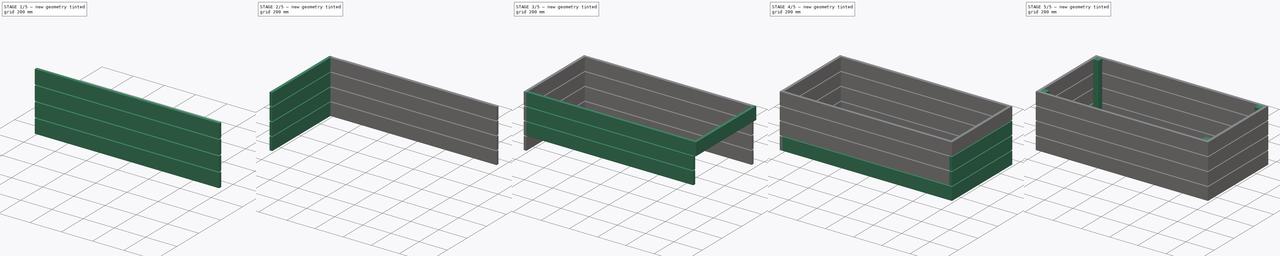
[diagram: build sequence overview — one tinted view per stage of 5, left to right]
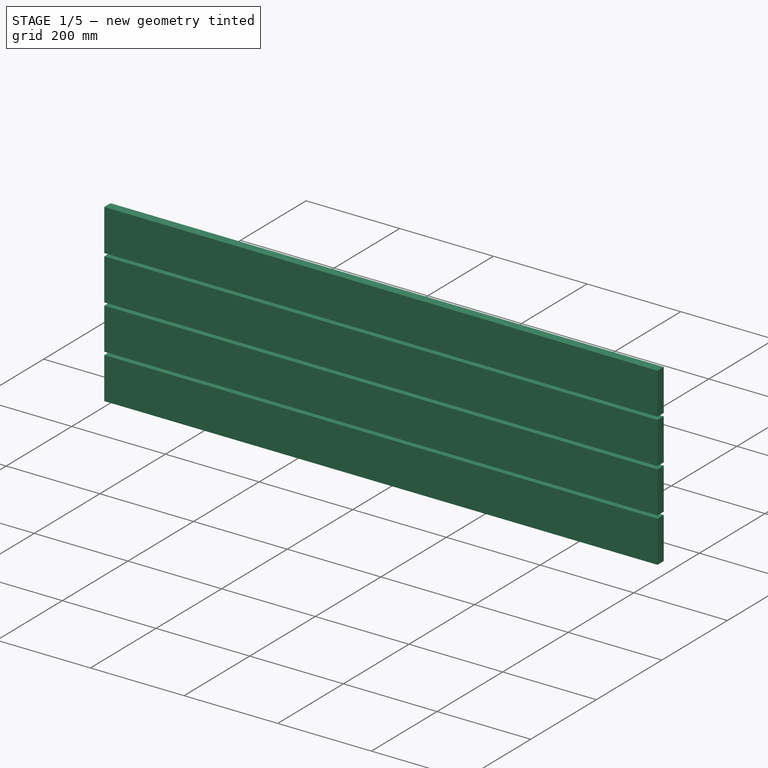
[diagram: stage 1 of 5 — iso view after this stage's code; geometry added in this stage tinted green]
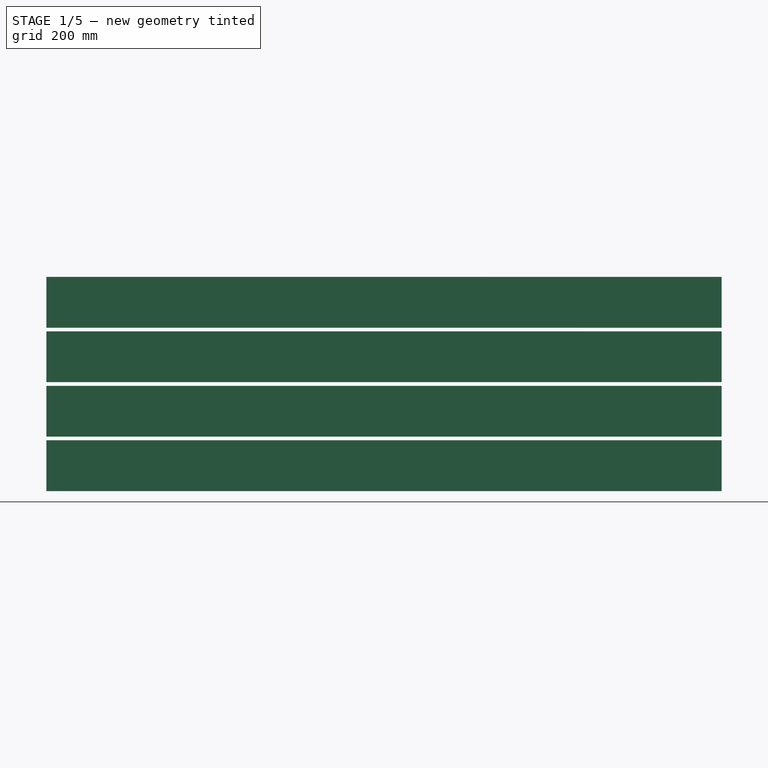
[diagram: stage 1 of 5 — front view after this stage's code; geometry added in this stage tinted green]
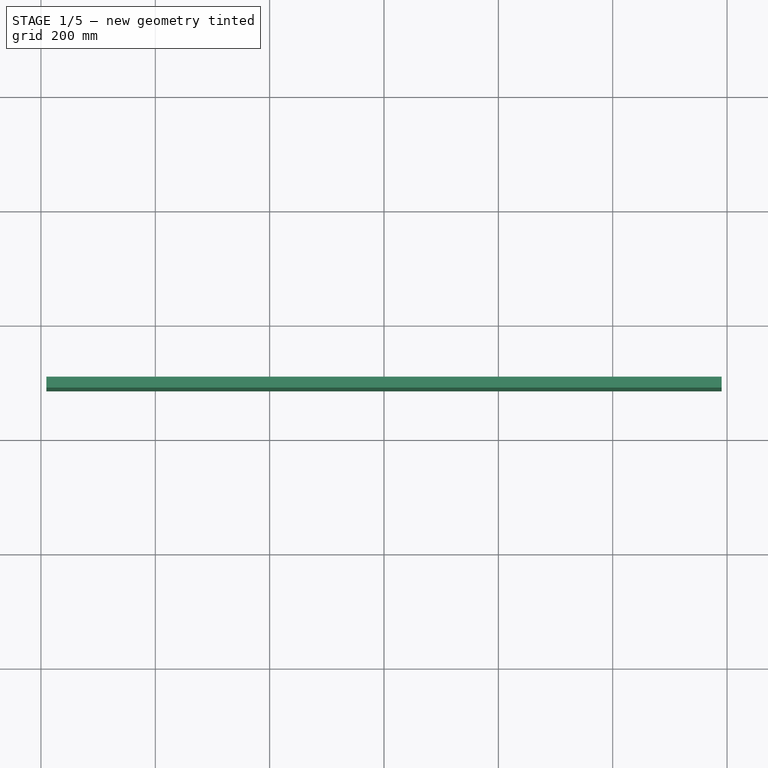
[diagram: stage 1 of 5 — top view after this stage's code; geometry added in this stage tinted green]
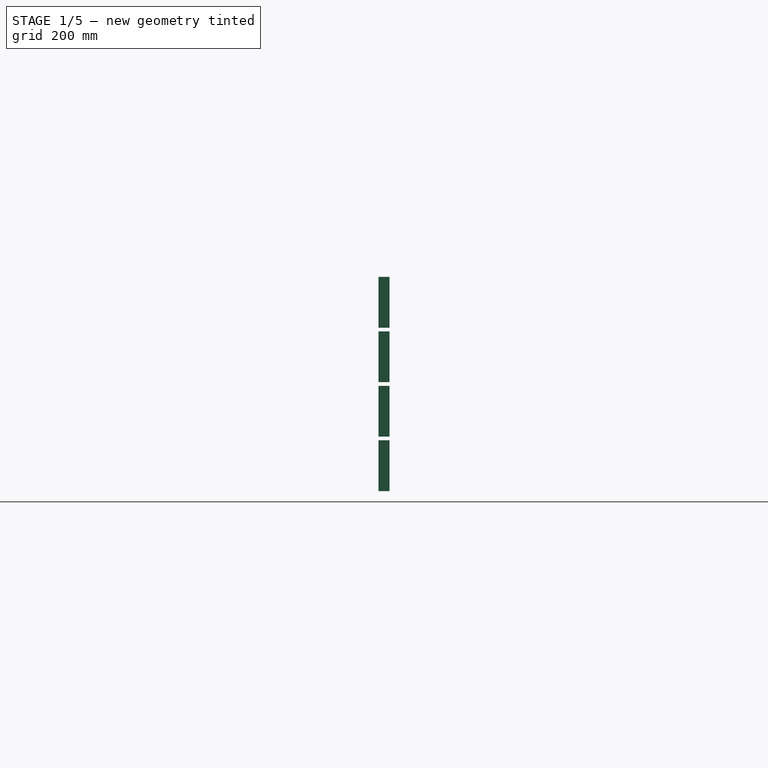
[diagram: stage 1 of 5 — right view after this stage's code; geometry added in this stage tinted green]
FCSTD DOCUMENT  (FreeCAD 0.21R33771 (Git))
Label: wormBin
License: All rights reserved
LicenseURL: http://en.wikipedia.org/wiki/All_rights_reserved
objects: Sketcher::SketchObject×20, PartDesign::Pad×20, PartDesign::Body×20, App::Part×5, Spreadsheet::Sheet×4
note: 80 computed .brp shape members not serialized (recipe doc carries the construction recipe); baked Part::Feature solids carry a one-line shape summary decoded from their .brp

FEATURE [PartDesign::Body] Body015  label="panelLeft4"
  Group = -> [Pad018,Sketch018]
  Origin = -> Origin019
  Tip = -> Pad018
FEATURE [App::Part] Part003  label="panelLeft"
  Group = -> [Body012,Body013,Body014,Body015]
  Origin = -> Origin015
FEATURE [Sketcher::SketchObject] Sketch019
  AttachmentOffset = pos=(0,0,-285.75) rot=(0,0,1;0rad)
  FullyConstrained = true
  MapMode = 5
  Placement = pos=(0,285.75,-6.34e-14) rot=(1,0,0;1.5708rad)
  Support = -> [XZ_Plane021]
  expr: .AttachmentOffset.Base.z = -<<expPanel>>.offsetZ
  expr: Constraints[10] = <<var>>.widPanel
  expr: Constraints[11] = -<<var>>.lenPanel
  expr: Constraints[8] = <<expPanel>>.vertexHor1
  expr: Constraints[9] = <<expSide>>.vertexVert1
  sketch-geometry (4):
    g0: LineSegment StartX=590.55 StartY=88.9 StartZ=0 EndX=-590.55 EndY=88.9 EndZ=0
    g1: LineSegment StartX=-590.55 StartY=88.9 StartZ=0 EndX=-590.55 EndY=1.42e-14 EndZ=0
    g2: LineSegment StartX=-590.55 StartY=1.42e-14 StartZ=0 EndX=590.55 EndY=1.42e-14 EndZ=0
    g3: LineSegment StartX=590.55 StartY=1.42e-14 StartZ=0 EndX=590.55 EndY=88.9 EndZ=0
  constraints (12):
    c: Coincident(g0,g1)
    c: Coincident(g1,g2)
    c: Coincident(g2,g3)
    c: Coincident(g3,g0)
    c: Horizontal(g0)
    c: Horizontal(g2)
    c: Vertical(g1)
    c: Vertical(g3)
    c: DistanceX(g0) = 590.55
    c: DistanceY(g0) = 88.9
    c: DistanceY(g3,g3) = 88.9
    c: DistanceX(g0,g0) = -1181.1
FEATURE [PartDesign::Pad] Pad019
  Direction = (0,-1,2e-16)
  Length = -19.05
  Length2 = 10
  Placement = pos=(0,0,0) rot=(1,0,0;1.5708rad)
  Profile = -> Sketch019
  ReferenceAxis = -> Sketch019 [N_Axis]
  Type = 0
  expr: Length = -<<var>>.thkPanel
FEATURE [PartDesign::Body] Body016  label="panelRear1"
  Group = -> [Sketch019,Pad019]
  Origin = -> Origin021
  Tip = -> Pad019
FEATURE [Sketcher::SketchObject] Sketch020
  AttachmentOffset = pos=(0,0,-285.75) rot=(0,0,1;0rad)
  FullyConstrained = true
  MapMode = 5
  Placement = pos=(0,285.75,-6.34e-14) rot=(1,0,0;1.5708rad)
  Support = -> [XZ_Plane022]
  expr: .AttachmentOffset.Base.z = -<<expPanel>>.offsetZ
  expr: Constraints[10] = <<var>>.widPanel
  expr: Constraints[11] = -<<var>>.lenPanel
  expr: Constraints[8] = <<expPanel>>.vertexHor1
  expr: Constraints[9] = <<expSide>>.vertexVert1 * 2 + <<expPanel>>.offsetVert
  sketch-geometry (4):
    g0: LineSegment StartX=590.55 StartY=184.15 StartZ=0 EndX=-590.55 EndY=184.15 EndZ=0
    g1: LineSegment StartX=-590.55 StartY=184.15 StartZ=0 EndX=-590.55 EndY=95.25 EndZ=0
    g2: LineSegment StartX=-590.55 StartY=95.25 StartZ=0 EndX=590.55 EndY=95.25 EndZ=0
    g3: LineSegment StartX=590.55 StartY=95.25 StartZ=0 EndX=590.55 EndY=184.15 EndZ=0
  constraints (12):
    c: Coincident(g0,g1)
    c: Coincident(g1,g2)
    c: Coincident(g2,g3)
    c: Coincident(g3,g0)
    c: Horizontal(g0)
    c: Horizontal(g2)
    c: Vertical(g1)
    c: Vertical(g3)
    c: DistanceX(g0) = 590.55
    c: DistanceY(g0) = 184.15
    c: DistanceY(g3,g3) = 88.9
    c: DistanceX(g0,g0) = -1181.1
FEATURE [PartDesign::Pad] Pad020
  Direction = (0,-1,2e-16)
  Length = -19.05
  Length2 = 10
  Placement = pos=(0,0,0) rot=(1,0,0;1.5708rad)
  Profile = -> Sketch020
  ReferenceAxis = -> Sketch020 [N_Axis]
  Type = 0
  expr: Length = -<<var>>.thkPanel
FEATURE [PartDesign::Body] Body017  label="panelRear2"
  Group = -> [Pad020,Sketch020]
  Origin = -> Origin022
  Tip = -> Pad020
FEATURE [Sketcher::SketchObject] Sketch021
  AttachmentOffset = pos=(0,0,-285.75) rot=(0,0,1;0rad)
  FullyConstrained = true
  MapMode = 5
  Placement = pos=(0,285.75,-6.34e-14) rot=(1,0,0;1.5708rad)
  Support = -> [XZ_Plane023]
  expr: .AttachmentOffset.Base.z = -<<expPanel>>.offsetZ
  expr: Constraints[10] = <<var>>.widPanel
  expr: Constraints[11] = -<<var>>.lenPanel
  expr: Constraints[8] = <<expPanel>>.vertexHor1
  expr: Constraints[9] = <<expSide>>.vertexVert1 * 3 + <<expPanel>>.offsetVert * 2
  sketch-geometry (4):
    g0: LineSegment StartX=590.55 StartY=279.4 StartZ=0 EndX=-590.55 EndY=279.4 EndZ=0
    g1: LineSegment StartX=-590.55 StartY=279.4 StartZ=0 EndX=-590.55 EndY=190.5 EndZ=0
    g2: LineSegment StartX=-590.55 StartY=190.5 StartZ=0 EndX=590.55 EndY=190.5 EndZ=0
    g3: LineSegment StartX=590.55 StartY=190.5 StartZ=0 EndX=590.55 EndY=279.4 EndZ=0
  constraints (12):
    c: Coincident(g0,g1)
    c: Coincident(g1,g2)
    c: Coincident(g2,g3)
    c: Coincident(g3,g0)
    c: Horizontal(g0)
    c: Horizontal(g2)
    c: Vertical(g1)
    c: Vertical(g3)
    c: DistanceX(g0) = 590.55
    c: DistanceY(g0) = 279.4
    c: DistanceY(g3,g3) = 88.9
    c: DistanceX(g0,g0) = -1181.1
FEATURE [PartDesign::Pad] Pad021
  Direction = (0,-1,2e-16)
  Length = -19.05
  Length2 = 10
  Placement = pos=(0,0,0) rot=(1,0,0;1.5708rad)
  Profile = -> Sketch021
  ReferenceAxis = -> Sketch021 [N_Axis]
  Type = 0
  expr: Length = -<<var>>.thkPanel
FEATURE [PartDesign::Body] Body018  label="panelRear3"
  Group = -> [Pad021,Sketch021]
  Origin = -> Origin023
  Tip = -> Pad021
FEATURE [Sketcher::SketchObject] Sketch022
  AttachmentOffset = pos=(0,0,-285.75) rot=(0,0,1;0rad)
  FullyConstrained = true
  MapMode = 5
  Placement = pos=(0,285.75,-6.34e-14) rot=(1,0,0;1.5708rad)
  Support = -> [XZ_Plane024]
  expr: .AttachmentOffset.Base.z = -<<expPanel>>.offsetZ
  expr: Constraints[10] = <<var>>.widPanel
  expr: Constraints[11] = -<<var>>.lenPanel
  expr: Constraints[8] = <<expPanel>>.vertexHor1
  expr: Constraints[9] = <<expSide>>.vertexVert1 * 4 + <<expPanel>>.offsetVert * 3
  sketch-geometry (4):
    g0: LineSegment StartX=590.55 StartY=374.65 StartZ=0 EndX=-590.55 EndY=374.65 EndZ=0
    g1: LineSegment StartX=-590.55 StartY=374.65 StartZ=0 EndX=-590.55 EndY=285.75 EndZ=0
    g2: LineSegment StartX=-590.55 StartY=285.75 StartZ=0 EndX=590.55 EndY=285.75 EndZ=0
    g3: LineSegment StartX=590.55 StartY=285.75 StartZ=0 EndX=590.55 EndY=374.65 EndZ=0
  constraints (12):
    c: Coincident(g0,g1)
    c: Coincident(g1,g2)
    c: Coincident(g2,g3)
    c: Coincident(g3,g0)
    c: Horizontal(g0)
    c: Horizontal(g2)
    c: Vertical(g1)
    c: Vertical(g3)
    c: DistanceX(g0) = 590.55
    c: DistanceY(g0) = 374.65
    c: DistanceY(g3,g3) = 88.9
    c: DistanceX(g0,g0) = -1181.1
FEATURE [PartDesign::Pad] Pad022
  Direction = (0,-1,2e-16)
  Length = -19.05
  Length2 = 10
  Placement = pos=(0,0,0) rot=(1,0,0;1.5708rad)
  Profile = -> Sketch022
  ReferenceAxis = -> Sketch022 [N_Axis]
  Type = 0
  expr: Length = -<<var>>.thkPanel
FEATURE [PartDesign::Body] Body019  label="panelRear4"
  Group = -> [Pad022,Sketch022]
  Origin = -> Origin024
  Tip = -> Pad022
FEATURE [App::Part] Part004  label="panelRear"
  Group = -> [Body016,Body017,Body018,Body019]
  Origin = -> Origin020
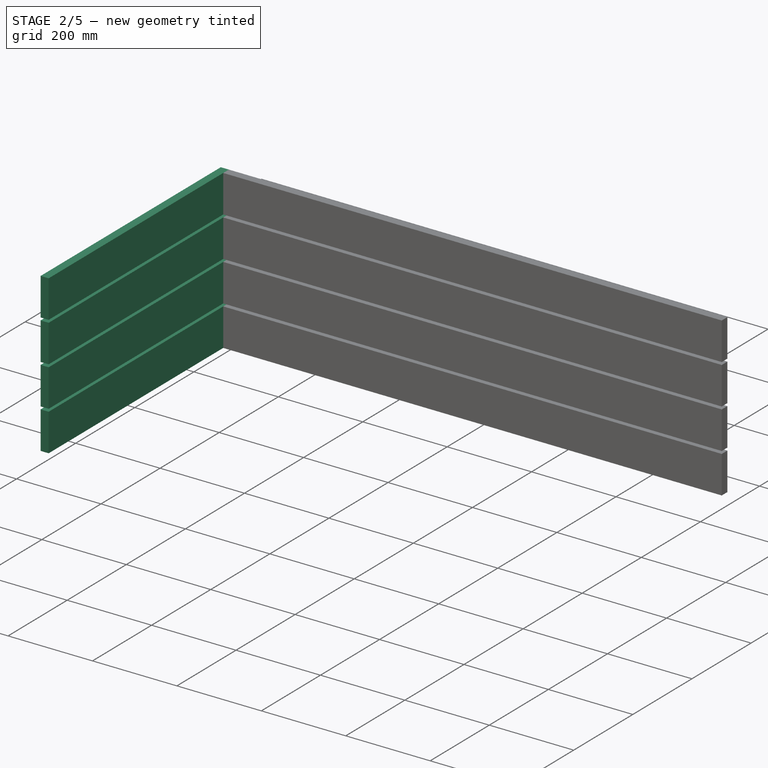
[diagram: stage 2 of 5 — iso view after this stage's code; geometry added in this stage tinted green]
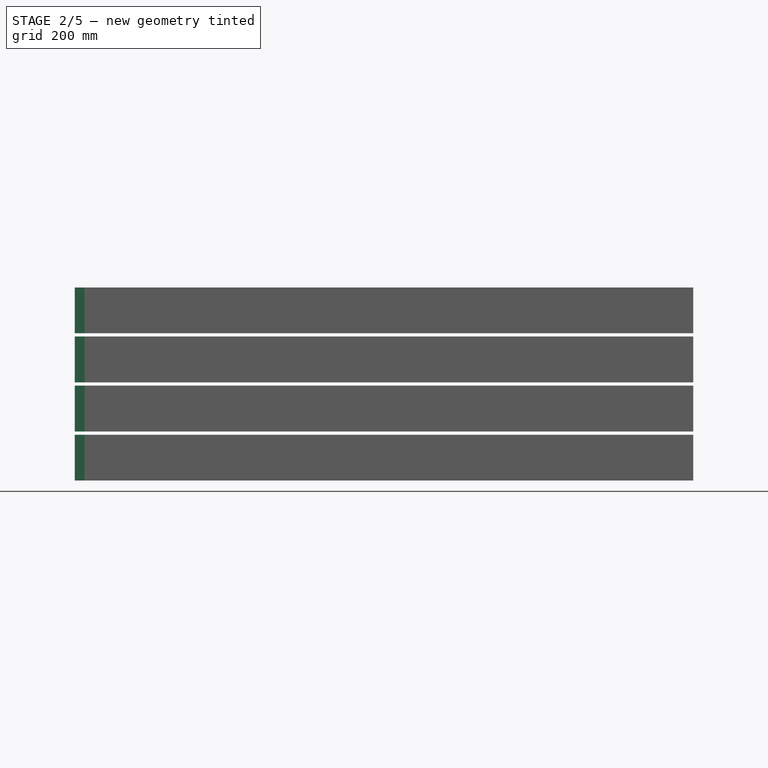
[diagram: stage 2 of 5 — front view after this stage's code; geometry added in this stage tinted green]
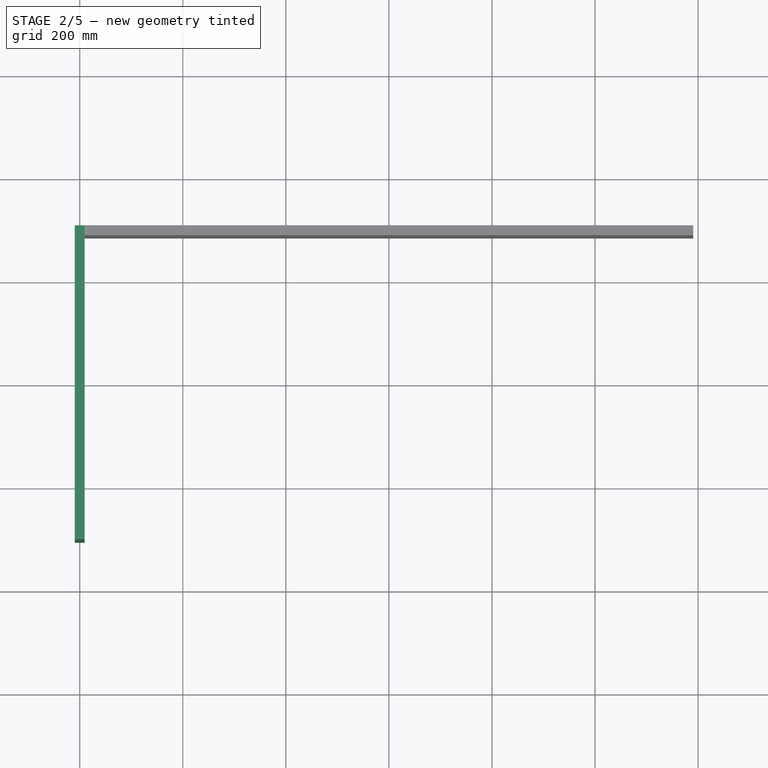
[diagram: stage 2 of 5 — top view after this stage's code; geometry added in this stage tinted green]
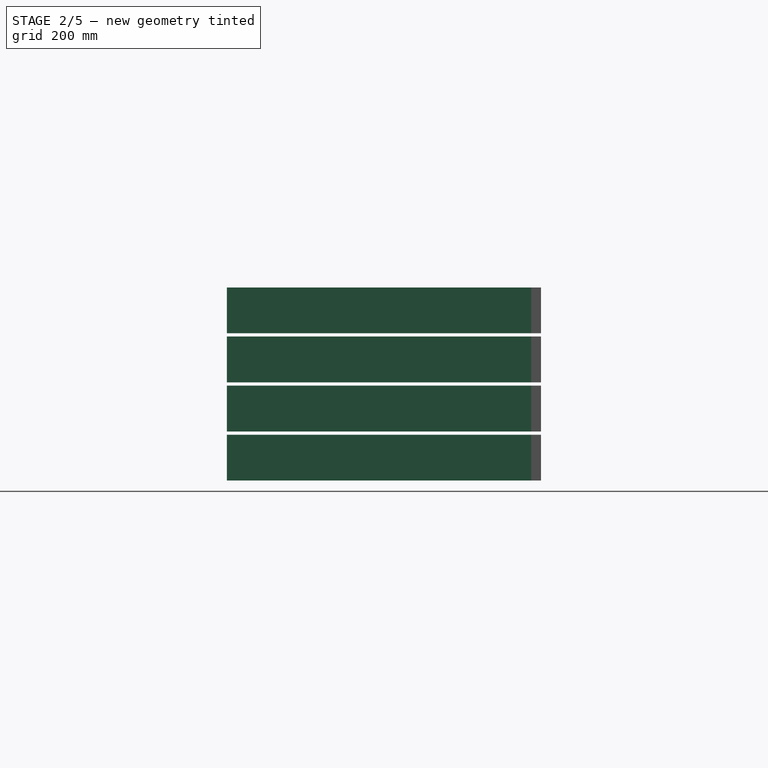
[diagram: stage 2 of 5 — right view after this stage's code; geometry added in this stage tinted green]
FEATURE [PartDesign::Body] Body007  label="panelFront4"
  Group = -> [Pad014,Sketch014]
  Origin = -> Origin009
  Tip = -> Pad014
FEATURE [App::Part] Part001  label="panelFront"
  Group = -> [Body004,Body005,Body006,Body007,Spreadsheet003]
  Origin = -> Origin005
FEATURE [Sketcher::SketchObject] Sketch015
  AttachmentOffset = pos=(0,0,-590.55) rot=(0,0,1;0rad)
  FullyConstrained = true
  MapMode = 5
  Placement = pos=(-590.55,1.311e-13,-1.311e-13) rot=(0.57735,0.57735,0.57735;2.0944rad)
  Support = -> [YZ_Plane016]
  expr: .AttachmentOffset.Base.z = -<<expSide>>.offsetZ
  expr: Constraints[10] = <<var>>.widPanel
  expr: Constraints[11] = <<var>>.lenSide
  expr: Constraints[8] = -<<expSide>>.vertexHor1
  expr: Constraints[9] = <<expSide>>.vertexVert1
  sketch-geometry (4):
    g0: LineSegment StartX=-304.8 StartY=88.9 StartZ=0 EndX=304.8 EndY=88.9 EndZ=0
    g1: LineSegment StartX=304.8 StartY=88.9 StartZ=0 EndX=304.8 EndY=0 EndZ=0
    g2: LineSegment StartX=304.8 StartY=0 StartZ=0 EndX=-304.8 EndY=0 EndZ=0
    g3: LineSegment StartX=-304.8 StartY=0 StartZ=0 EndX=-304.8 EndY=88.9 EndZ=0
  constraints (12):
    c: Coincident(g0,g1)
    c: Coincident(g1,g2)
    c: Coincident(g2,g3)
    c: Coincident(g3,g0)
    c: Horizontal(g0)
    c: Horizontal(g2)
    c: Vertical(g1)
    c: Vertical(g3)
    c: DistanceX(g0) = -304.8
    c: DistanceY(g0) = 88.9
    c: DistanceY(g3,g3) = 88.9
    c: DistanceX(g0,g0) = 609.6
FEATURE [PartDesign::Pad] Pad015
  Direction = (1,-2e-16,3e-16)
  Length = -19.05
  Length2 = 10
  Placement = pos=(0,0,0) rot=(1,1,1;2.0944rad)
  Profile = -> Sketch015
  ReferenceAxis = -> Sketch015 [N_Axis]
  Type = 0
  expr: Length = -<<var>>.thkSide
FEATURE [PartDesign::Body] Body012  label="panelLeft1"
  Group = -> [Sketch015,Pad015]
  Origin = -> Origin016
  Tip = -> Pad015
FEATURE [Sketcher::SketchObject] Sketch016
  AttachmentOffset = pos=(0,0,-590.55) rot=(0,0,1;0rad)
  FullyConstrained = true
  MapMode = 5
  Placement = pos=(-590.55,1.311e-13,-1.311e-13) rot=(0.57735,0.57735,0.57735;2.0944rad)
  Support = -> [YZ_Plane017]
  expr: .AttachmentOffset.Base.z = -<<expSide>>.offsetZ
  expr: Constraints[10] = <<var>>.widPanel
  expr: Constraints[11] = <<var>>.lenSide
  expr: Constraints[8] = -<<expSide>>.vertexHor1
  expr: Constraints[9] = <<expSide>>.vertexVert1 * 2 + <<expSide>>.offsetVert
  sketch-geometry (4):
    g0: LineSegment StartX=-304.8 StartY=184.15 StartZ=0 EndX=304.8 EndY=184.15 EndZ=0
    g1: LineSegment StartX=304.8 StartY=184.15 StartZ=0 EndX=304.8 EndY=95.25 EndZ=0
    g2: LineSegment StartX=304.8 StartY=95.25 StartZ=0 EndX=-304.8 EndY=95.25 EndZ=0
    g3: LineSegment StartX=-304.8 StartY=95.25 StartZ=0 EndX=-304.8 EndY=184.15 EndZ=0
  constraints (12):
    c: Coincident(g0,g1)
    c: Coincident(g1,g2)
    c: Coincident(g2,g3)
    c: Coincident(g3,g0)
    c: Horizontal(g0)
    c: Horizontal(g2)
    c: Vertical(g1)
    c: Vertical(g3)
    c: DistanceX(g0) = -304.8
    c: DistanceY(g0) = 184.15
    c: DistanceY(g3,g3) = 88.9
    c: DistanceX(g0,g0) = 609.6
FEATURE [PartDesign::Pad] Pad016
  Direction = (1,-2e-16,3e-16)
  Length = -19.05
  Length2 = 10
  Placement = pos=(0,0,0) rot=(1,1,1;2.0944rad)
  Profile = -> Sketch016
  ReferenceAxis = -> Sketch016 [N_Axis]
  Type = 0
  expr: Length = -<<var>>.thkSide
FEATURE [PartDesign::Body] Body013  label="panelLeft2"
  Group = -> [Pad016,Sketch016]
  Origin = -> Origin017
  Tip = -> Pad016
FEATURE [Sketcher::SketchObject] Sketch017
  AttachmentOffset = pos=(0,0,-590.55) rot=(0,0,1;0rad)
  FullyConstrained = true
  MapMode = 5
  Placement = pos=(-590.55,1.311e-13,-1.311e-13) rot=(0.57735,0.57735,0.57735;2.0944rad)
  Support = -> [YZ_Plane018]
  expr: .AttachmentOffset.Base.z = -<<expSide>>.offsetZ
  expr: Constraints[10] = <<var>>.widPanel
  expr: Constraints[11] = <<var>>.lenSide
  expr: Constraints[8] = -<<expSide>>.vertexHor1
  expr: Constraints[9] = (<<expSide>>.vertexVert1 + <<expSide>>.offsetVert) * 2 + <<var>>.widSide
  sketch-geometry (4):
    g0: LineSegment StartX=-304.8 StartY=279.4 StartZ=0 EndX=304.8 EndY=279.4 EndZ=0
    g1: LineSegment StartX=304.8 StartY=279.4 StartZ=0 EndX=304.8 EndY=190.5 EndZ=0
    g2: LineSegment StartX=304.8 StartY=190.5 StartZ=0 EndX=-304.8 EndY=190.5 EndZ=0
    g3: LineSegment StartX=-304.8 StartY=190.5 StartZ=0 EndX=-304.8 EndY=279.4 EndZ=0
  constraints (12):
    c: Coincident(g0,g1)
    c: Coincident(g1,g2)
    c: Coincident(g2,g3)
    c: Coincident(g3,g0)
    c: Horizontal(g0)
    c: Horizontal(g2)
    c: Vertical(g1)
    c: Vertical(g3)
    c: DistanceX(g0) = -304.8
    c: DistanceY(g0) = 279.4
    c: DistanceY(g3,g3) = 88.9
    c: DistanceX(g0,g0) = 609.6
FEATURE [PartDesign::Pad] Pad017
  Direction = (1,-2e-16,3e-16)
  Length = -19.05
  Length2 = 10
  Placement = pos=(0,0,0) rot=(1,1,1;2.0944rad)
  Profile = -> Sketch017
  ReferenceAxis = -> Sketch017 [N_Axis]
  Type = 0
  expr: Length = -<<var>>.thkSide
FEATURE [PartDesign::Body] Body014  label="panelLeft3"
  Group = -> [Pad017,Sketch017]
  Origin = -> Origin018
  Tip = -> Pad017
FEATURE [Sketcher::SketchObject] Sketch018
  AttachmentOffset = pos=(0,0,-590.55) rot=(0,0,1;0rad)
  FullyConstrained = true
  MapMode = 5
  Placement = pos=(-590.55,1.311e-13,-1.311e-13) rot=(0.57735,0.57735,0.57735;2.0944rad)
  Support = -> [YZ_Plane019]
  expr: .AttachmentOffset.Base.z = -<<expSide>>.offsetZ
  expr: Constraints[10] = <<var>>.widPanel
  expr: Constraints[11] = <<var>>.lenSide
  expr: Constraints[8] = -<<expSide>>.vertexHor1
  expr: Constraints[9] = (<<expSide>>.vertexVert1 + <<expSide>>.offsetVert) * 3 + <<var>>.widSide
  sketch-geometry (4):
    g0: LineSegment StartX=-304.8 StartY=374.65 StartZ=0 EndX=304.8 EndY=374.65 EndZ=0
    g1: LineSegment StartX=304.8 StartY=374.65 StartZ=0 EndX=304.8 EndY=285.75 EndZ=0
    g2: LineSegment StartX=304.8 StartY=285.75 StartZ=0 EndX=-304.8 EndY=285.75 EndZ=0
    g3: LineSegment StartX=-304.8 StartY=285.75 StartZ=0 EndX=-304.8 EndY=374.65 EndZ=0
  constraints (12):
    c: Coincident(g0,g1)
    c: Coincident(g1,g2)
    c: Coincident(g2,g3)
    c: Coincident(g3,g0)
    c: Horizontal(g0)
    c: Horizontal(g2)
    c: Vertical(g1)
    c: Vertical(g3)
    c: DistanceX(g0) = -304.8
    c: DistanceY(g0) = 374.65
    c: DistanceY(g3,g3) = 88.9
    c: DistanceX(g0,g0) = 609.6
FEATURE [PartDesign::Pad] Pad018
  Direction = (1,-2e-16,3e-16)
  Length = -19.05
  Length2 = 10
  Placement = pos=(0,0,0) rot=(1,1,1;2.0944rad)
  Profile = -> Sketch018
  ReferenceAxis = -> Sketch018 [N_Axis]
  Type = 0
  expr: Length = -<<var>>.thkSide
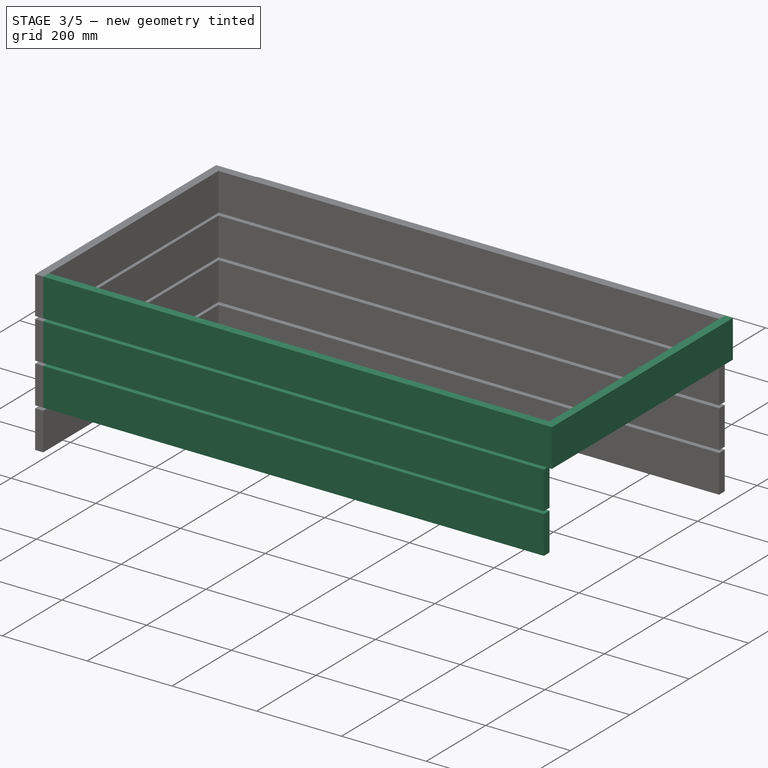
[diagram: stage 3 of 5 — iso view after this stage's code; geometry added in this stage tinted green]
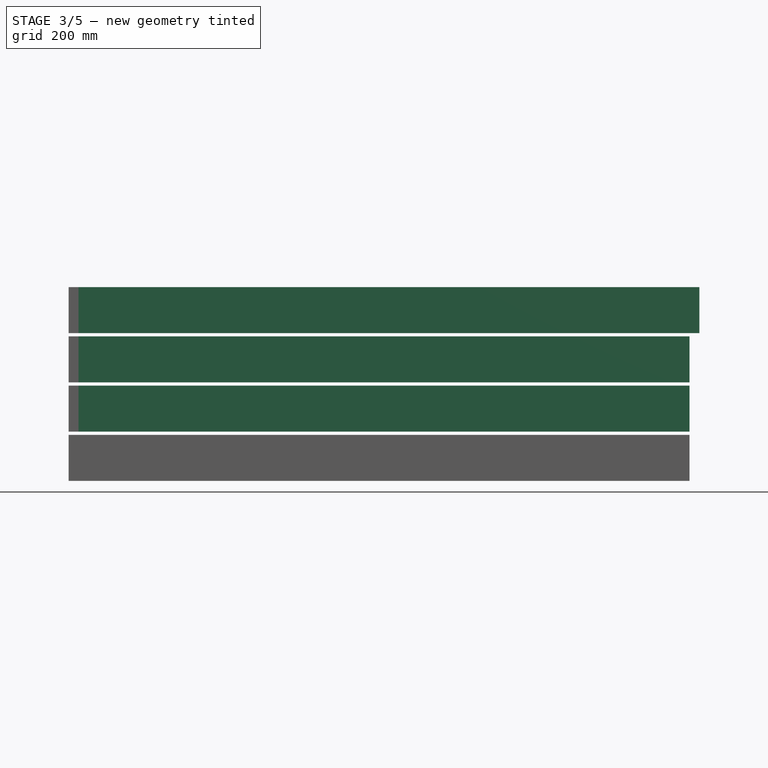
[diagram: stage 3 of 5 — front view after this stage's code; geometry added in this stage tinted green]
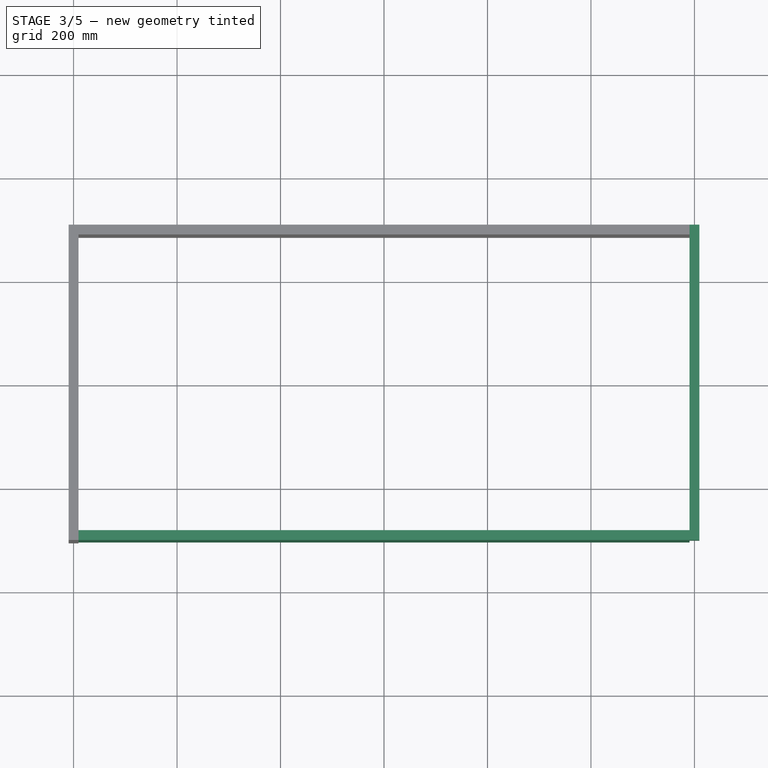
[diagram: stage 3 of 5 — top view after this stage's code; geometry added in this stage tinted green]
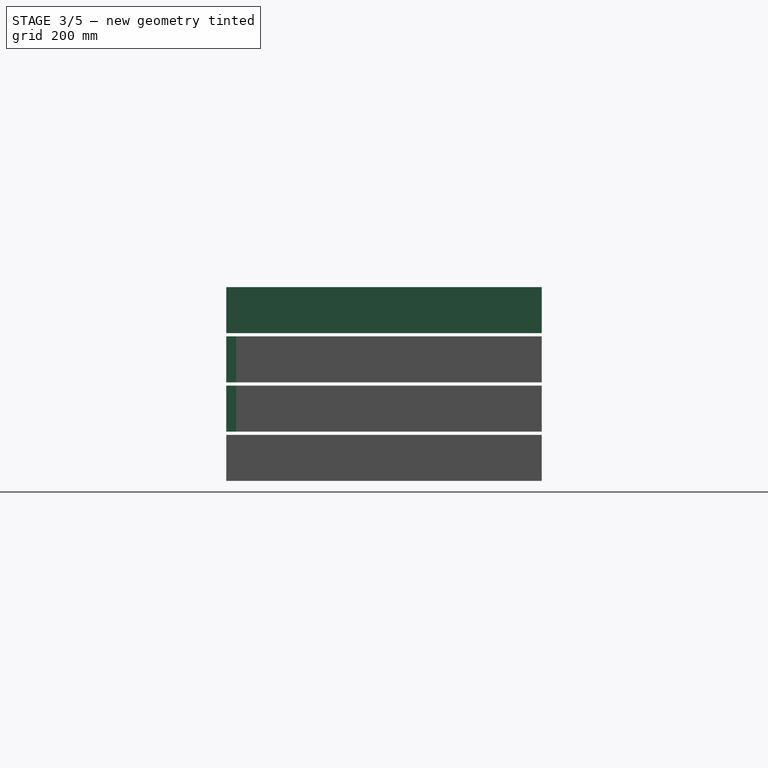
[diagram: stage 3 of 5 — right view after this stage's code; geometry added in this stage tinted green]
FEATURE [PartDesign::Body] Body010  label="panelRight3"
  Group = -> [Pad010,Sketch010]
  Origin = -> Origin013
  Tip = -> Pad010
FEATURE [Sketcher::SketchObject] Sketch011
  AttachmentOffset = pos=(0,0,590.55) rot=(0,0,1;0rad)
  FullyConstrained = true
  MapMode = 5
  Placement = pos=(590.55,-1.311e-13,1.311e-13) rot=(0.57735,0.57735,0.57735;2.0944rad)
  Support = -> [YZ_Plane014]
  expr: .AttachmentOffset.Base.z = <<expSide>>.offsetZ
  expr: Constraints[10] = <<var>>.widSide
  expr: Constraints[11] = <<var>>.lenSide
  expr: Constraints[8] = -<<expSide>>.vertexHor1
  expr: Constraints[9] = (<<expSide>>.vertexVert1 + <<expSide>>.offsetVert) * 3 + <<var>>.widSide
  sketch-geometry (4):
    g0: LineSegment StartX=-304.8 StartY=374.65 StartZ=0 EndX=304.8 EndY=374.65 EndZ=0
    g1: LineSegment StartX=304.8 StartY=374.65 StartZ=0 EndX=304.8 EndY=285.75 EndZ=0
    g2: LineSegment StartX=304.8 StartY=285.75 StartZ=0 EndX=-304.8 EndY=285.75 EndZ=0
    g3: LineSegment StartX=-304.8 StartY=285.75 StartZ=0 EndX=-304.8 EndY=374.65 EndZ=0
  constraints (12):
    c: Coincident(g0,g1)
    c: Coincident(g1,g2)
    c: Coincident(g2,g3)
    c: Coincident(g3,g0)
    c: Horizontal(g0)
    c: Horizontal(g2)
    c: Vertical(g1)
    c: Vertical(g3)
    c: DistanceX(g0) = -304.8
    c: DistanceY(g0) = 374.65
    c: DistanceY(g3,g3) = 88.9
    c: DistanceX(g0,g0) = 609.6
FEATURE [PartDesign::Pad] Pad011
  Direction = (1,-2e-16,3e-16)
  Length = 19.05
  Length2 = 10
  Placement = pos=(0,0,0) rot=(1,1,1;2.0944rad)
  Profile = -> Sketch011
  ReferenceAxis = -> Sketch011 [N_Axis]
  Type = 0
  expr: Length = <<var>>.thkSide
FEATURE [PartDesign::Body] Body011  label="panelRight4"
  Group = -> [Pad011,Sketch011]
  Origin = -> Origin014
  Tip = -> Pad011
FEATURE [App::Part] Part002  label="panelRight"
  Group = -> [Body008,Body009,Body010,Body011,Spreadsheet002]
  Origin = -> Origin010
FEATURE [Spreadsheet::Sheet] Spreadsheet003  label="expPanel"
  cells = A2='Side; A3='vertexVert1; B3(vertexVert1)==<<var>>.widPanel; A4='vertexHor1; B4(vertexHor1)==<<var>>.lenPanel * 0.5; A5='offsetZ; B5(offsetZ)==<<var>>.widBox * 0.5 - <<var>>.thkPanel; A6='offsetVert; B6(offsetVert)==<<var>>.offsetPanelSpacing
FEATURE [Sketcher::SketchObject] Sketch012
  AttachmentOffset = pos=(0,0,285.75) rot=(0,0,1;0rad)
  FullyConstrained = true
  MapMode = 5
  Placement = pos=(0,-285.75,-6.34e-14) rot=(1,0,0;1.5708rad)
  Support = -> [XZ_Plane007]
  expr: .AttachmentOffset.Base.z = <<var>>.widBox * 0.5 - <<var>>.thkPanel
  expr: Constraints[10] = <<var>>.widPanel
  expr: Constraints[11] = <<var>>.lenBox - <<var>>.thkSide * 2
  expr: Constraints[8] = -<<expPanel>>.vertexHor1
  expr: Constraints[9] = <<var>>.widPanel * 2 + <<expPanel>>.offsetVert
  sketch-geometry (4):
    g0: LineSegment StartX=-590.55 StartY=184.15 StartZ=0 EndX=590.55 EndY=184.15 EndZ=0
    g1: LineSegment StartX=590.55 StartY=184.15 StartZ=0 EndX=590.55 EndY=95.25 EndZ=0
    g2: LineSegment StartX=590.55 StartY=95.25 StartZ=0 EndX=-590.55 EndY=95.25 EndZ=0
    g3: LineSegment StartX=-590.55 StartY=95.25 StartZ=0 EndX=-590.55 EndY=184.15 EndZ=0
  constraints (12):
    c: Coincident(g0,g1)
    c: Coincident(g1,g2)
    c: Coincident(g2,g3)
    c: Coincident(g3,g0)
    c: Horizontal(g0)
    c: Horizontal(g2)
    c: Vertical(g1)
    c: Vertical(g3)
    c: DistanceX(g0) = -590.55
    c: DistanceY(g0) = 184.15
    c: DistanceY(g3,g3) = 88.9
    c: DistanceX(g0,g0) = 1181.1
FEATURE [PartDesign::Pad] Pad012
  Direction = (0,-1,-2e-16)
  Length = 19.05
  Length2 = 10
  Placement = pos=(0,0,0) rot=(1,0,0;1.5708rad)
  Profile = -> Sketch012
  ReferenceAxis = -> Sketch012 [N_Axis]
  Type = 0
  expr: Length = <<var>>.thkPanel
FEATURE [PartDesign::Body] Body005  label="panelFront2"
  Group = -> [Pad012,Sketch012]
  Origin = -> Origin007
  Tip = -> Pad012
FEATURE [Sketcher::SketchObject] Sketch013
  AttachmentOffset = pos=(0,0,285.75) rot=(0,0,1;0rad)
  FullyConstrained = true
  MapMode = 5
  Placement = pos=(0,-285.75,-6.34e-14) rot=(1,0,0;1.5708rad)
  Support = -> [XZ_Plane008]
  expr: .AttachmentOffset.Base.z = <<var>>.widBox * 0.5 - <<var>>.thkPanel
  expr: Constraints[10] = <<var>>.widPanel
  expr: Constraints[11] = <<var>>.lenBox - <<var>>.thkSide * 2
  expr: Constraints[8] = -<<expPanel>>.vertexHor1
  expr: Constraints[9] = (<<var>>.widPanel + <<expPanel>>.offsetVert) * 2 + <<var>>.widPanel
  sketch-geometry (4):
    g0: LineSegment StartX=-590.55 StartY=279.4 StartZ=0 EndX=590.55 EndY=279.4 EndZ=0
    g1: LineSegment StartX=590.55 StartY=279.4 StartZ=0 EndX=590.55 EndY=190.5 EndZ=0
    g2: LineSegment StartX=590.55 StartY=190.5 StartZ=0 EndX=-590.55 EndY=190.5 EndZ=0
    g3: LineSegment StartX=-590.55 StartY=190.5 StartZ=0 EndX=-590.55 EndY=279.4 EndZ=0
  constraints (12):
    c: Coincident(g0,g1)
    c: Coincident(g1,g2)
    c: Coincident(g2,g3)
    c: Coincident(g3,g0)
    c: Horizontal(g0)
    c: Horizontal(g2)
    c: Vertical(g1)
    c: Vertical(g3)
    c: DistanceX(g0) = -590.55
    c: DistanceY(g0) = 279.4
    c: DistanceY(g3,g3) = 88.9
    c: DistanceX(g0,g0) = 1181.1
FEATURE [PartDesign::Pad] Pad013
  Direction = (0,-1,-2e-16)
  Length = 19.05
  Length2 = 10
  Placement = pos=(0,0,0) rot=(1,0,0;1.5708rad)
  Profile = -> Sketch013
  ReferenceAxis = -> Sketch013 [N_Axis]
  Type = 0
  expr: Length = <<var>>.thkPanel
FEATURE [PartDesign::Body] Body006  label="panelFront3"
  Group = -> [Pad013,Sketch013]
  Origin = -> Origin008
  Tip = -> Pad013
FEATURE [Sketcher::SketchObject] Sketch014
  AttachmentOffset = pos=(0,0,285.75) rot=(0,0,1;0rad)
  FullyConstrained = true
  MapMode = 5
  Placement = pos=(0,-285.75,-6.34e-14) rot=(1,0,0;1.5708rad)
  Support = -> [XZ_Plane009]
  expr: .AttachmentOffset.Base.z = <<var>>.widBox * 0.5 - <<var>>.thkPanel
  expr: Constraints[10] = <<var>>.widPanel
  expr: Constraints[11] = <<var>>.lenBox - <<var>>.thkSide * 2
  expr: Constraints[8] = -<<expPanel>>.vertexHor1
  expr: Constraints[9] = (<<var>>.widPanel + <<expPanel>>.offsetVert) * 3 + <<var>>.widPanel
  sketch-geometry (4):
    g0: LineSegment StartX=-590.55 StartY=374.65 StartZ=0 EndX=590.55 EndY=374.65 EndZ=0
    g1: LineSegment StartX=590.55 StartY=374.65 StartZ=0 EndX=590.55 EndY=285.75 EndZ=0
    g2: LineSegment StartX=590.55 StartY=285.75 StartZ=0 EndX=-590.55 EndY=285.75 EndZ=0
    g3: LineSegment StartX=-590.55 StartY=285.75 StartZ=0 EndX=-590.55 EndY=374.65 EndZ=0
  constraints (12):
    c: Coincident(g0,g1)
    c: Coincident(g1,g2)
    c: Coincident(g2,g3)
    c: Coincident(g3,g0)
    c: Horizontal(g0)
    c: Horizontal(g2)
    c: Vertical(g1)
    c: Vertical(g3)
    c: DistanceX(g0) = -590.55
    c: DistanceY(g0) = 374.65
    c: DistanceY(g3,g3) = 88.9
    c: DistanceX(g0,g0) = 1181.1
FEATURE [PartDesign::Pad] Pad014
  Direction = (0,-1,-2e-16)
  Length = 19.05
  Length2 = 10
  Placement = pos=(0,0,0) rot=(1,0,0;1.5708rad)
  Profile = -> Sketch014
  ReferenceAxis = -> Sketch014 [N_Axis]
  Type = 0
  expr: Length = <<var>>.thkPanel
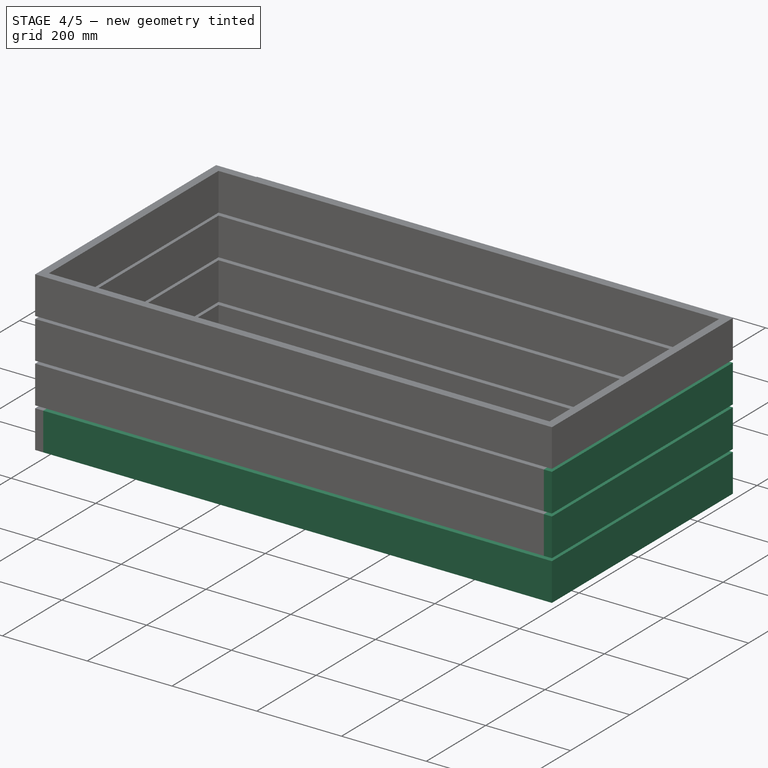
[diagram: stage 4 of 5 — iso view after this stage's code; geometry added in this stage tinted green]
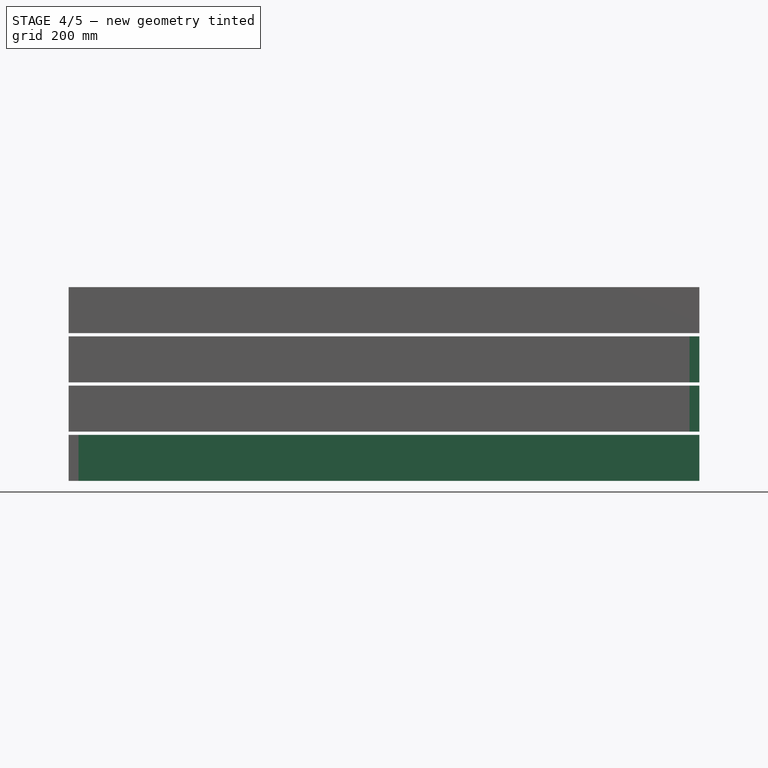
[diagram: stage 4 of 5 — front view after this stage's code; geometry added in this stage tinted green]
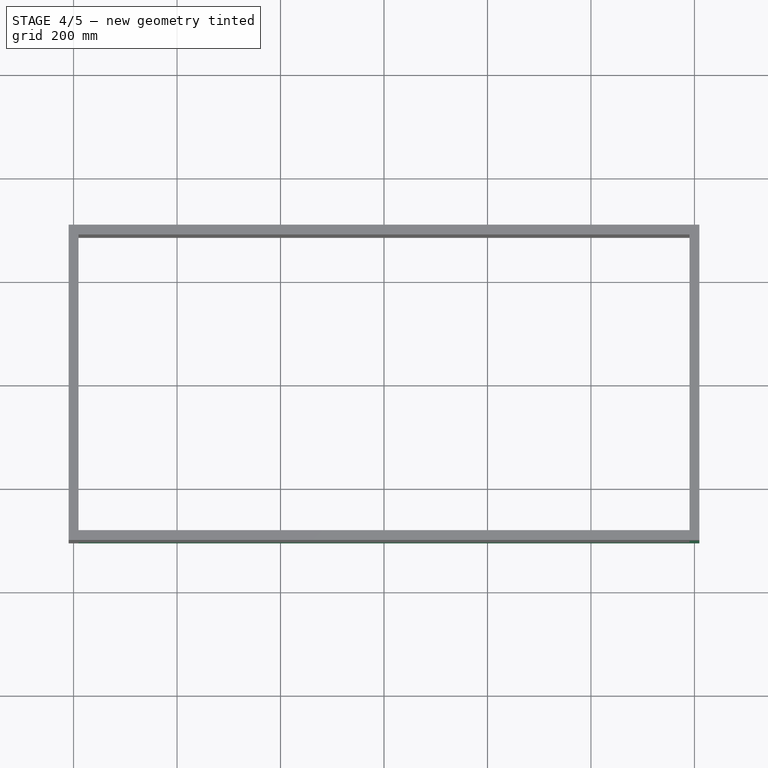
[diagram: stage 4 of 5 — top view after this stage's code; geometry added in this stage tinted green]
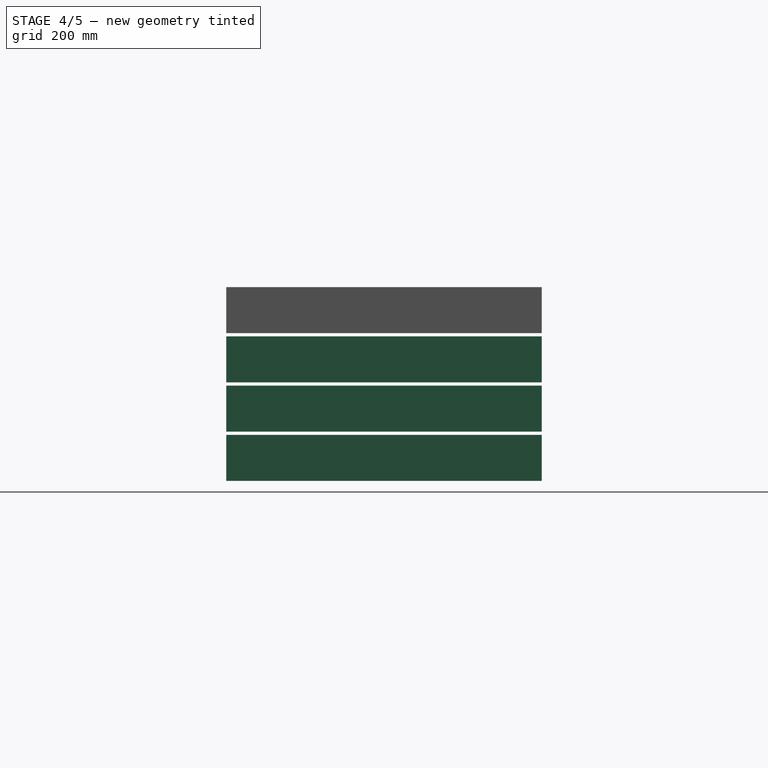
[diagram: stage 4 of 5 — right view after this stage's code; geometry added in this stage tinted green]
FEATURE [PartDesign::Body] Body003  label="post4"
  Group = -> [Sketch003,Pad003]
  Origin = -> Origin003
  Tip = -> Pad003
FEATURE [Sketcher::SketchObject] Sketch004
  AttachmentOffset = pos=(0,0,285.75) rot=(0,0,1;0rad)
  FullyConstrained = true
  MapMode = 5
  Placement = pos=(0,-285.75,-6.34e-14) rot=(1,0,0;1.5708rad)
  Support = -> [XZ_Plane006]
  expr: .AttachmentOffset.Base.z = <<var>>.widBox * 0.5 - <<var>>.thkPanel
  expr: Constraints[10] = <<var>>.widPanel
  expr: Constraints[11] = -<<var>>.lenBox + <<var>>.thkSide * 2
  expr: Constraints[8] = <<expPanel>>.vertexHor1
  expr: Constraints[9] = <<var>>.widPanel
  sketch-geometry (4):
    g0: LineSegment StartX=590.55 StartY=88.9 StartZ=0 EndX=-590.55 EndY=88.9 EndZ=0
    g1: LineSegment StartX=-590.55 StartY=88.9 StartZ=0 EndX=-590.55 EndY=0 EndZ=0
    g2: LineSegment StartX=-590.55 StartY=0 StartZ=0 EndX=590.55 EndY=0 EndZ=0
    g3: LineSegment StartX=590.55 StartY=0 StartZ=0 EndX=590.55 EndY=88.9 EndZ=0
  constraints (12):
    c: Coincident(g0,g1)
    c: Coincident(g1,g2)
    c: Coincident(g2,g3)
    c: Coincident(g3,g0)
    c: Horizontal(g0)
    c: Horizontal(g2)
    c: Vertical(g1)
    c: Vertical(g3)
    c: DistanceX(g0) = 590.55
    c: DistanceY(g0) = 88.9
    c: DistanceY(g3,g3) = 88.9
    c: DistanceX(g0,g0) = -1181.1
FEATURE [PartDesign::Pad] Pad004
  Direction = (0,-1,-2e-16)
  Length = 19.05
  Length2 = 10
  Placement = pos=(0,0,0) rot=(1,0,0;1.5708rad)
  Profile = -> Sketch004
  ReferenceAxis = -> Sketch004 [N_Axis]
  Type = 0
  expr: Length = <<var>>.thkPanel
FEATURE [PartDesign::Body] Body004  label="panelFront1"
  Group = -> [Sketch004,Pad004]
  Origin = -> Origin006
  Tip = -> Pad004
FEATURE [Sketcher::SketchObject] Sketch008
  AttachmentOffset = pos=(0,0,590.55) rot=(0,0,1;0rad)
  FullyConstrained = true
  MapMode = 5
  Placement = pos=(590.55,-1.311e-13,1.311e-13) rot=(0.57735,0.57735,0.57735;2.0944rad)
  Support = -> [YZ_Plane011]
  expr: .AttachmentOffset.Base.z = <<expSide>>.offsetZ
  expr: Constraints[10] = <<var>>.widSide
  expr: Constraints[11] = <<var>>.lenSide
  expr: Constraints[8] = -<<expSide>>.vertexHor1
  expr: Constraints[9] = <<expSide>>.vertexVert1
  sketch-geometry (4):
    g0: LineSegment StartX=-304.8 StartY=88.9 StartZ=0 EndX=304.8 EndY=88.9 EndZ=0
    g1: LineSegment StartX=304.8 StartY=88.9 StartZ=0 EndX=304.8 EndY=-1.42e-14 EndZ=0
    g2: LineSegment StartX=304.8 StartY=-1.42e-14 StartZ=0 EndX=-304.8 EndY=-1.42e-14 EndZ=0
    g3: LineSegment StartX=-304.8 StartY=-1.42e-14 StartZ=0 EndX=-304.8 EndY=88.9 EndZ=0
  constraints (12):
    c: Coincident(g0,g1)
    c: Coincident(g1,g2)
    c: Coincident(g2,g3)
    c: Coincident(g3,g0)
    c: Horizontal(g0)
    c: Horizontal(g2)
    c: Vertical(g1)
    c: Vertical(g3)
    c: DistanceX(g0) = -304.8
    c: DistanceY(g0) = 88.9
    c: DistanceY(g3,g3) = 88.9
    c: DistanceX(g0,g0) = 609.6
FEATURE [Spreadsheet::Sheet] Spreadsheet001  label="expPost"
  cells = A2='Post; A3='vertexOuterVert; B3(vertexOuterVert)==<<var>>.widBox * 0.5 - <<var>>.thkPanel; A4='vertexInnerVert; B4(vertexInnerVert)==<<var>>.widBox * 0.5 - <<var>>.thkPanel - <<var>>.widPost; A5='vertexOuterHor; B5(vertexOuterHor)==<<var>>.lenBox * 0.5 - <<var>>.thkPanel; A6='vertexInnerHor; B6(vertexInnerHor)==<<var>>.lenBox * 0.5 - <<var>>.thkPanel - <<var>>.widPost
FEATURE [App::Part] Part  label="posts"
  Group = -> [Body003,Body002,Body001,Body,Spreadsheet001]
  Origin = -> Origin004
FEATURE [Spreadsheet::Sheet] Spreadsheet002  label="expSide"
  cells = A2='Side; A3='vertexVert1; B3(vertexVert1)==<<var>>.widSide; A4='vertexHor1; B4(vertexHor1)==<<var>>.lenSide * 0.5; A5='offsetZ; B5(offsetZ)==<<var>>.lenBox * 0.5 - <<var>>.thkSide; A6='offsetVert; B6(offsetVert)==<<var>>.offsetPanelSpacing
FEATURE [PartDesign::Pad] Pad008
  Direction = (1,-2e-16,3e-16)
  Length = 19.05
  Length2 = 10
  Placement = pos=(0,0,0) rot=(1,1,1;2.0944rad)
  Profile = -> Sketch008
  ReferenceAxis = -> Sketch008 [N_Axis]
  Type = 0
  expr: Length = <<var>>.thkSide
FEATURE [PartDesign::Body] Body008  label="panelRight1"
  Group = -> [Sketch008,Pad008]
  Origin = -> Origin011
  Tip = -> Pad008
FEATURE [Sketcher::SketchObject] Sketch009
  AttachmentOffset = pos=(0,0,590.55) rot=(0,0,1;0rad)
  FullyConstrained = true
  MapMode = 5
  Placement = pos=(590.55,-1.311e-13,1.311e-13) rot=(0.57735,0.57735,0.57735;2.0944rad)
  Support = -> [YZ_Plane012]
  expr: .AttachmentOffset.Base.z = <<expSide>>.offsetZ
  expr: Constraints[10] = <<var>>.widSide
  expr: Constraints[11] = <<var>>.lenSide
  expr: Constraints[8] = -<<expSide>>.vertexHor1
  expr: Constraints[9] = <<expSide>>.vertexVert1 * 2 + <<expSide>>.offsetVert
  sketch-geometry (4):
    g0: LineSegment StartX=-304.8 StartY=184.15 StartZ=0 EndX=304.8 EndY=184.15 EndZ=0
    g1: LineSegment StartX=304.8 StartY=184.15 StartZ=0 EndX=304.8 EndY=95.25 EndZ=0
    g2: LineSegment StartX=304.8 StartY=95.25 StartZ=0 EndX=-304.8 EndY=95.25 EndZ=0
    g3: LineSegment StartX=-304.8 StartY=95.25 StartZ=0 EndX=-304.8 EndY=184.15 EndZ=0
  constraints (12):
    c: Coincident(g0,g1)
    c: Coincident(g1,g2)
    c: Coincident(g2,g3)
    c: Coincident(g3,g0)
    c: Horizontal(g0)
    c: Horizontal(g2)
    c: Vertical(g1)
    c: Vertical(g3)
    c: DistanceX(g0) = -304.8
    c: DistanceY(g0) = 184.15
    c: DistanceY(g3,g3) = 88.9
    c: DistanceX(g0,g0) = 609.6
FEATURE [PartDesign::Pad] Pad009
  Direction = (1,-2e-16,3e-16)
  Length = 19.05
  Length2 = 10
  Placement = pos=(0,0,0) rot=(1,1,1;2.0944rad)
  Profile = -> Sketch009
  ReferenceAxis = -> Sketch009 [N_Axis]
  Type = 0
  expr: Length = <<var>>.thkSide
FEATURE [PartDesign::Body] Body009  label="panelRight2"
  Group = -> [Pad009,Sketch009]
  Origin = -> Origin012
  Tip = -> Pad009
FEATURE [Sketcher::SketchObject] Sketch010
  AttachmentOffset = pos=(0,0,590.55) rot=(0,0,1;0rad)
  FullyConstrained = true
  MapMode = 5
  Placement = pos=(590.55,-1.311e-13,1.311e-13) rot=(0.57735,0.57735,0.57735;2.0944rad)
  Support = -> [YZ_Plane013]
  expr: .AttachmentOffset.Base.z = <<expSide>>.offsetZ
  expr: Constraints[10] = <<var>>.widSide
  expr: Constraints[11] = <<var>>.lenSide
  expr: Constraints[8] = -<<expSide>>.vertexHor1
  expr: Constraints[9] = (<<expSide>>.vertexVert1 + <<expSide>>.offsetVert) * 2 + <<var>>.widSide
  sketch-geometry (4):
    g0: LineSegment StartX=-304.8 StartY=279.4 StartZ=0 EndX=304.8 EndY=279.4 EndZ=0
    g1: LineSegment StartX=304.8 StartY=279.4 StartZ=0 EndX=304.8 EndY=190.5 EndZ=0
    g2: LineSegment StartX=304.8 StartY=190.5 StartZ=0 EndX=-304.8 EndY=190.5 EndZ=0
    g3: LineSegment StartX=-304.8 StartY=190.5 StartZ=0 EndX=-304.8 EndY=279.4 EndZ=0
  constraints (12):
    c: Coincident(g0,g1)
    c: Coincident(g1,g2)
    c: Coincident(g2,g3)
    c: Coincident(g3,g0)
    c: Horizontal(g0)
    c: Horizontal(g2)
    c: Vertical(g1)
    c: Vertical(g3)
    c: DistanceX(g0) = -304.8
    c: DistanceY(g0) = 279.4
    c: DistanceY(g3,g3) = 88.9
    c: DistanceX(g0,g0) = 609.6
FEATURE [PartDesign::Pad] Pad010
  Direction = (1,-2e-16,3e-16)
  Length = 19.05
  Length2 = 10
  Placement = pos=(0,0,0) rot=(1,1,1;2.0944rad)
  Profile = -> Sketch010
  ReferenceAxis = -> Sketch010 [N_Axis]
  Type = 0
  expr: Length = <<var>>.thkSide
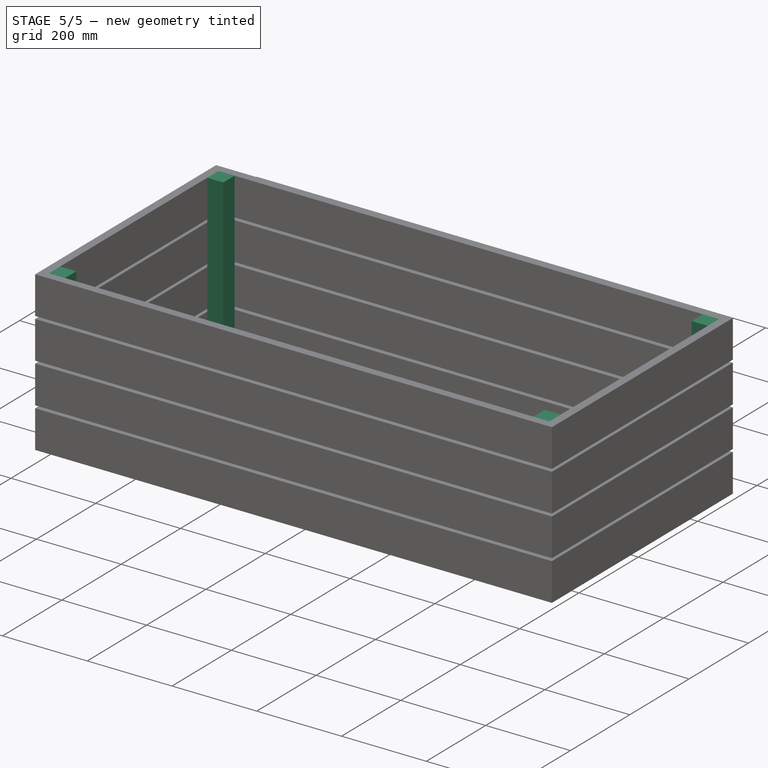
[diagram: stage 5 of 5 — iso view after this stage's code; geometry added in this stage tinted green]
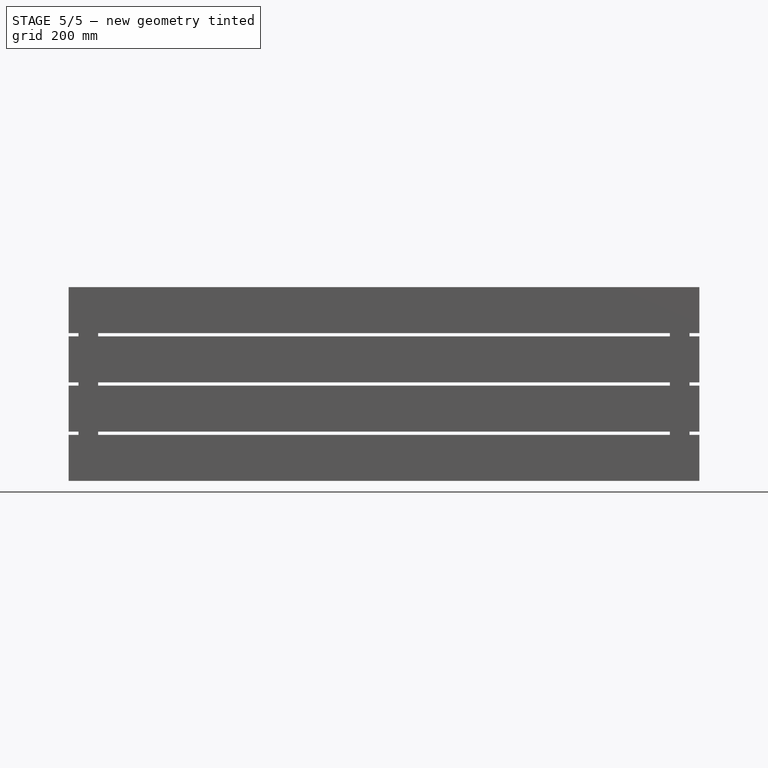
[diagram: stage 5 of 5 — front view after this stage's code; geometry added in this stage tinted green]
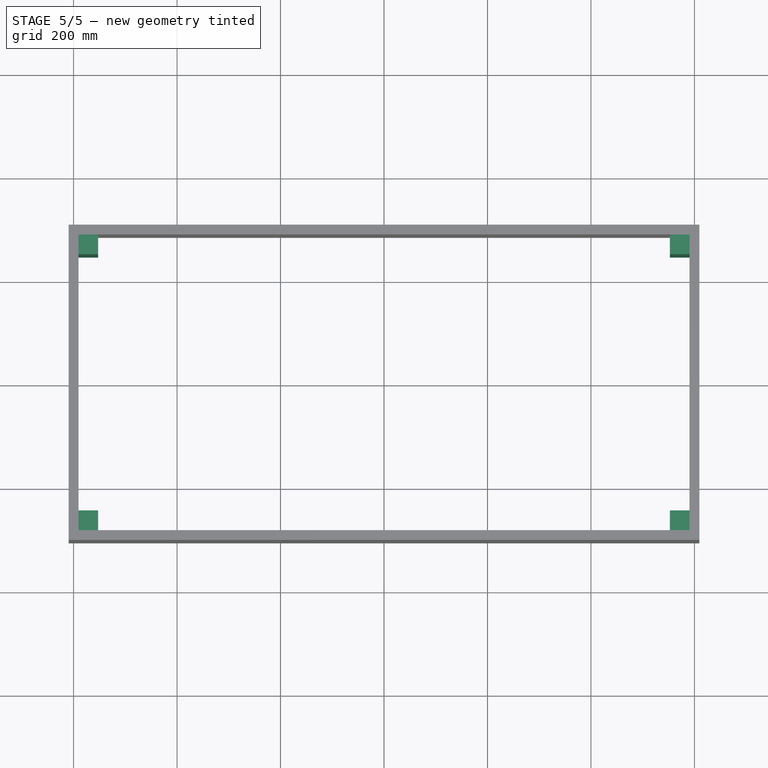
[diagram: stage 5 of 5 — top view after this stage's code; geometry added in this stage tinted green]
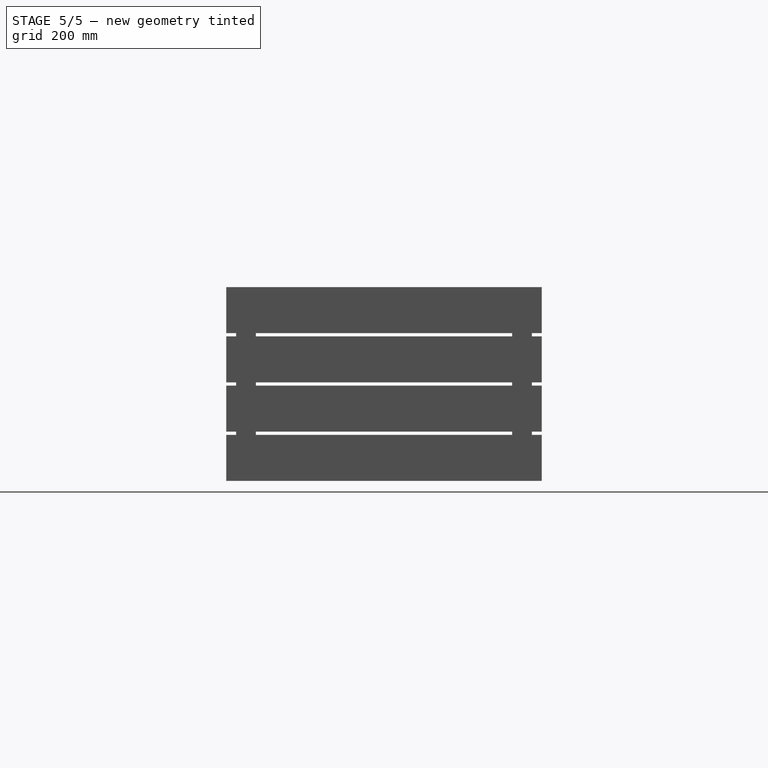
[diagram: stage 5 of 5 — right view after this stage's code; geometry added in this stage tinted green]
FEATURE [Spreadsheet::Sheet] Spreadsheet  label="var"
  cells = A1='wormBin; B1='Outer Dims.; A2='widBox; B2(widBox)==lenBox * 0.5; A3='thkBox; B3(thkBox)==(offsetPanelSpacing + widPanel) * 4 + thkLid; A4='lenBox; B4(lenBox)==25.4 * 12 * 4; A5='offsetPanelSpacing; B5(offsetPanelSpacing)==25.4 * 0.25; A7='Post; B7='Member Dims.; A8='widPost; B8(widPost)==25.4 * 1.5; A9='thkPost; B9(thkPost)=; A10='lenPost; B10(lenPost)==thkBox - offsetPanelSpacing - thkLid; A12='Panel; B12='Member Dims.; A13='widPanel; B13(widPanel)==25.4 * 3.5; A14='thkPanel; B14(thkPanel)==25.4 * 0.75; A15='lenPanel; B15(lenPanel)==lenBox - 2 * thkSide; A17='Side; B17='Member Dims.; A18='widSide; B18(widSide)==widPanel; A19='thkSide; B19(thkSide)==thkPanel; A20='lenSide; B20(lenSide)==widBox; A22='Lid; B22='Member Dims.; A23='widLid; B23(widLid)=; A24='thkLid; B24(thkLid)==25.4 * 0.75; A25='lenLid; B25(lenLid)==lenBox
FEATURE [Sketcher::SketchObject] Sketch
  FullyConstrained = true
  MapMode = 5
  Support = -> [XY_Plane]
  expr: Constraints[10] = -(<<var>>.lenBox * 0.5 - <<var>>.thkPanel - <<var>>.widPost)
  expr: Constraints[11] = <<var>>.widBox * 0.5 - <<var>>.thkPanel - <<var>>.widPost
  expr: Constraints[8] = -(<<var>>.lenBox * 0.5 - <<var>>.thkPanel)
  expr: Constraints[9] = <<var>>.widBox * 0.5 - <<var>>.thkPanel
  sketch-geometry (4):
    g0: LineSegment StartX=-590.55 StartY=285.75 StartZ=0 EndX=-552.45 EndY=285.75 EndZ=0
    g1: LineSegment StartX=-552.45 StartY=285.75 StartZ=0 EndX=-552.45 EndY=247.65 EndZ=0
    g2: LineSegment StartX=-552.45 StartY=247.65 StartZ=0 EndX=-590.55 EndY=247.65 EndZ=0
    g3: LineSegment StartX=-590.55 StartY=247.65 StartZ=0 EndX=-590.55 EndY=285.75 EndZ=0
  constraints (12):
    c: Coincident(g0,g1)
    c: Coincident(g1,g2)
    c: Coincident(g2,g3)
    c: Coincident(g3,g0)
    c: Horizontal(g0)
    c: Horizontal(g2)
    c: Vertical(g1)
    c: Vertical(g3)
    c: DistanceX(g0) = -590.55
    c: DistanceY(g0) = 285.75
    c: DistanceX(g1) = -552.45
    c: DistanceY(g1) = 247.65
FEATURE [PartDesign::Pad] Pad
  Direction = (0,0,1)
  Length = 374.65
  Length2 = 10
  Profile = -> Sketch
  ReferenceAxis = -> Sketch [N_Axis]
  Type = 0
  expr: Length = <<var>>.lenPost
FEATURE [PartDesign::Body] Body  label="post1"
  Group = -> [Sketch,Pad]
  Origin = -> Origin
  Tip = -> Pad
FEATURE [Sketcher::SketchObject] Sketch001
  FullyConstrained = true
  MapMode = 5
  Support = -> [XY_Plane001]
  expr: Constraints[10] = <<var>>.lenBox * 0.5 - <<var>>.thkPanel - <<var>>.widPost
  expr: Constraints[11] = <<var>>.widBox * 0.5 - <<var>>.thkPanel - <<var>>.widPost
  expr: Constraints[8] = <<var>>.lenBox * 0.5 - <<var>>.thkPanel
  expr: Constraints[9] = <<var>>.widBox * 0.5 - <<var>>.thkPanel
  sketch-geometry (4):
    g0: LineSegment StartX=552.45 StartY=285.75 StartZ=0 EndX=590.55 EndY=285.75 EndZ=0
    g1: LineSegment StartX=590.55 StartY=285.75 StartZ=0 EndX=590.55 EndY=247.65 EndZ=0
    g2: LineSegment StartX=590.55 StartY=247.65 StartZ=0 EndX=552.45 EndY=247.65 EndZ=0
    g3: LineSegment StartX=552.45 StartY=247.65 StartZ=0 EndX=552.45 EndY=285.75 EndZ=0
  constraints (12):
    c: Coincident(g0,g1)
    c: Coincident(g1,g2)
    c: Coincident(g2,g3)
    c: Coincident(g3,g0)
    c: Horizontal(g0)
    c: Horizontal(g2)
    c: Vertical(g1)
    c: Vertical(g3)
    c: DistanceX(g0) = 590.55
    c: DistanceY(g0) = 285.75
    c: DistanceX(g2) = 552.45
    c: DistanceY(g2) = 247.65
FEATURE [PartDesign::Pad] Pad001
  Direction = (0,0,1)
  Length = 374.65
  Length2 = 10
  Profile = -> Sketch001
  ReferenceAxis = -> Sketch001 [N_Axis]
  Type = 0
  expr: Length = <<var>>.lenPost
FEATURE [PartDesign::Body] Body001  label="post2"
  Group = -> [Sketch001,Pad001]
  Origin = -> Origin001
  Tip = -> Pad001
FEATURE [Sketcher::SketchObject] Sketch002
  FullyConstrained = true
  MapMode = 5
  Support = -> [XY_Plane002]
  expr: Constraints[10] = -(<<var>>.lenBox * 0.5 - <<var>>.thkPanel - <<var>>.widPost)
  expr: Constraints[11] = -(<<var>>.widBox * 0.5 - <<var>>.thkPanel - <<var>>.widPost)
  expr: Constraints[8] = -(<<var>>.lenBox * 0.5 - <<var>>.thkPanel)
  expr: Constraints[9] = -(<<var>>.widBox * 0.5 - <<var>>.thkPanel)
  sketch-geometry (4):
    g0: LineSegment StartX=-590.55 StartY=-285.75 StartZ=0 EndX=-552.45 EndY=-285.75 EndZ=0
    g1: LineSegment StartX=-552.45 StartY=-285.75 StartZ=0 EndX=-552.45 EndY=-247.65 EndZ=0
    g2: LineSegment StartX=-552.45 StartY=-247.65 StartZ=0 EndX=-590.55 EndY=-247.65 EndZ=0
    g3: LineSegment StartX=-590.55 StartY=-247.65 StartZ=0 EndX=-590.55 EndY=-285.75 EndZ=0
  constraints (12):
    c: Coincident(g0,g1)
    c: Coincident(g1,g2)
    c: Coincident(g2,g3)
    c: Coincident(g3,g0)
    c: Horizontal(g0)
    c: Horizontal(g2)
    c: Vertical(g1)
    c: Vertical(g3)
    c: DistanceX(g0) = -590.55
    c: DistanceY(g0) = -285.75
    c: DistanceX(g1) = -552.45
    c: DistanceY(g1) = -247.65
FEATURE [PartDesign::Pad] Pad002
  Direction = (0,0,1)
  Length = 374.65
  Length2 = 10
  Profile = -> Sketch002
  ReferenceAxis = -> Sketch002 [N_Axis]
  Type = 0
  expr: Length = <<var>>.lenPost
FEATURE [PartDesign::Body] Body002  label="post3"
  Group = -> [Sketch002,Pad002]
  Origin = -> Origin002
  Tip = -> Pad002
FEATURE [Sketcher::SketchObject] Sketch003
  FullyConstrained = true
  MapMode = 5
  Support = -> [XY_Plane003]
  expr: Constraints[10] = <<var>>.lenBox * 0.5 - <<var>>.thkPanel - <<var>>.widPost
  expr: Constraints[11] = -(<<var>>.widBox * 0.5 - <<var>>.thkPanel - <<var>>.widPost)
  expr: Constraints[8] = <<var>>.lenBox * 0.5 - <<var>>.thkPanel
  expr: Constraints[9] = -(<<var>>.widBox * 0.5 - <<var>>.thkPanel)
  sketch-geometry (4):
    g0: LineSegment StartX=590.55 StartY=-285.75 StartZ=0 EndX=552.45 EndY=-285.75 EndZ=0
    g1: LineSegment StartX=552.45 StartY=-285.75 StartZ=0 EndX=552.45 EndY=-247.65 EndZ=0
    g2: LineSegment StartX=552.45 StartY=-247.65 StartZ=0 EndX=590.55 EndY=-247.65 EndZ=0
    g3: LineSegment StartX=590.55 StartY=-247.65 StartZ=0 EndX=590.55 EndY=-285.75 EndZ=0
  constraints (12):
    c: Coincident(g0,g1)
    c: Coincident(g1,g2)
    c: Coincident(g2,g3)
    c: Coincident(g3,g0)
    c: Horizontal(g0)
    c: Horizontal(g2)
    c: Vertical(g1)
    c: Vertical(g3)
    c: DistanceX(g0) = 590.55
    c: DistanceY(g0) = -285.75
    c: DistanceX(g1) = 552.45
    c: DistanceY(g1) = -247.65
FEATURE [PartDesign::Pad] Pad003
  Direction = (0,0,1)
  Length = 374.65
  Length2 = 10
  Profile = -> Sketch003
  ReferenceAxis = -> Sketch003 [N_Axis]
  Type = 0
  expr: Length = <<var>>.lenPost
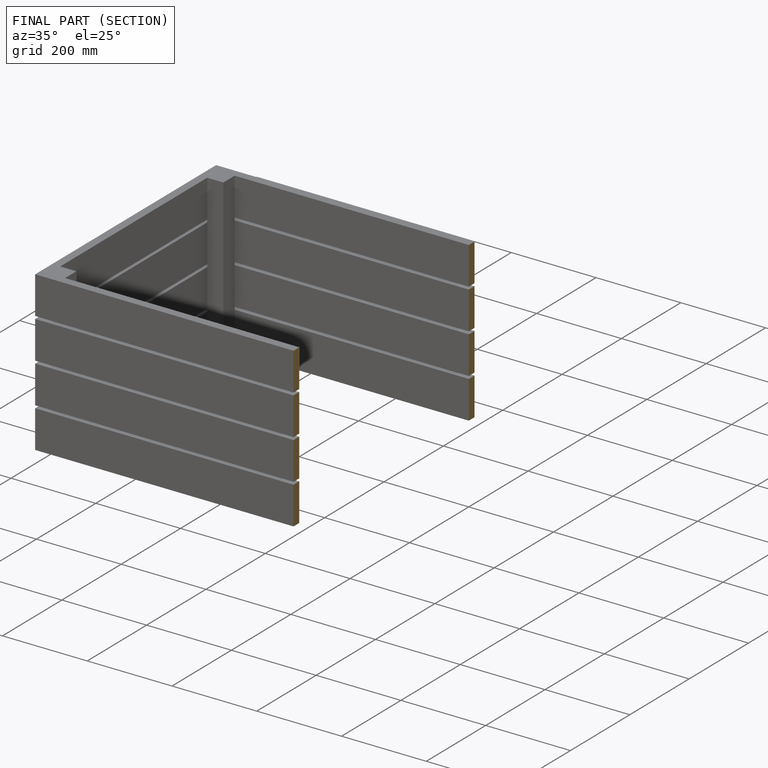
[diagram: finished part — half-section view (interior)]
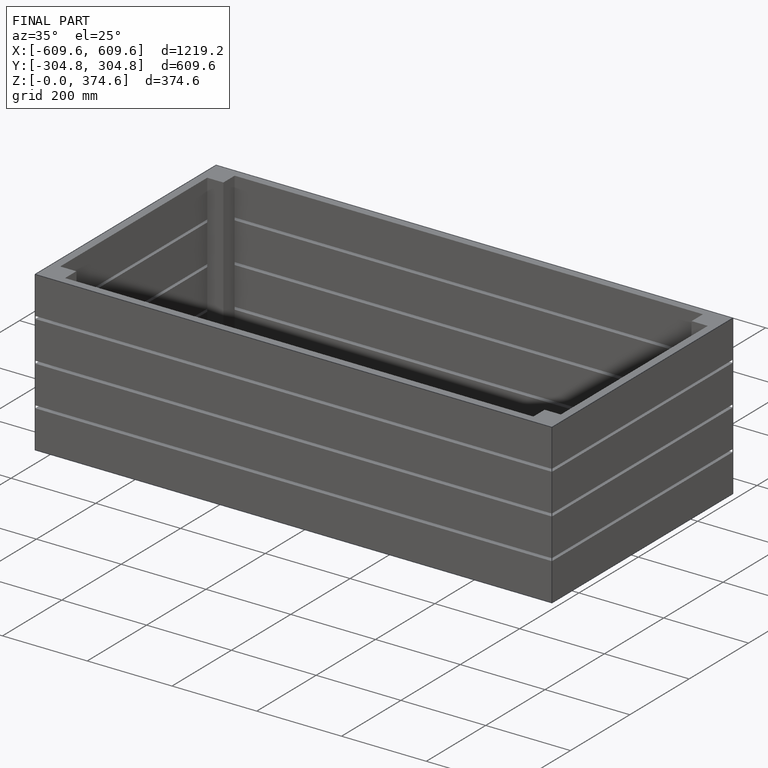
[diagram: finished part — iso view with bounding-box wireframe]
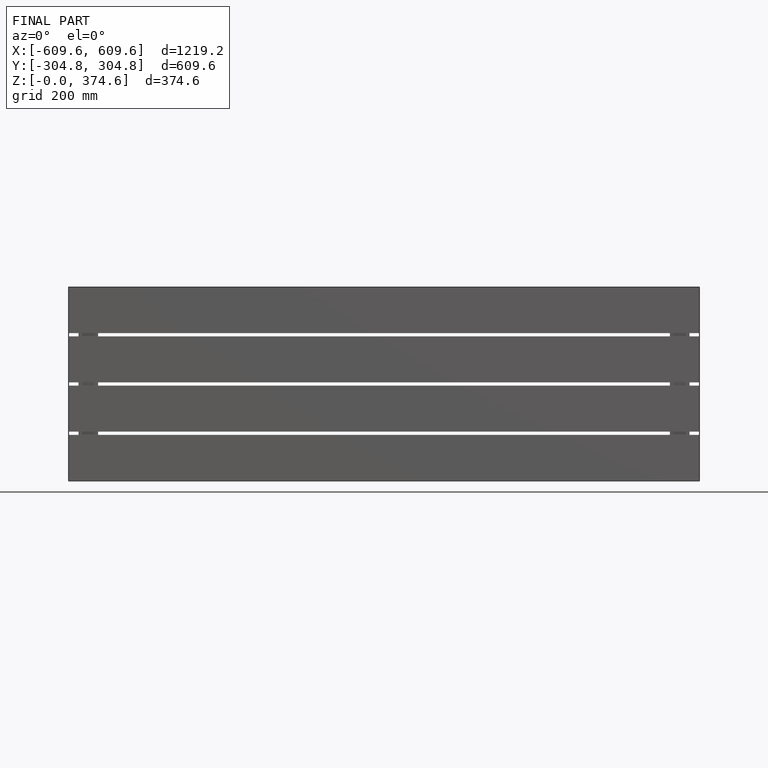
[diagram: finished part — front view with bounding-box wireframe]
